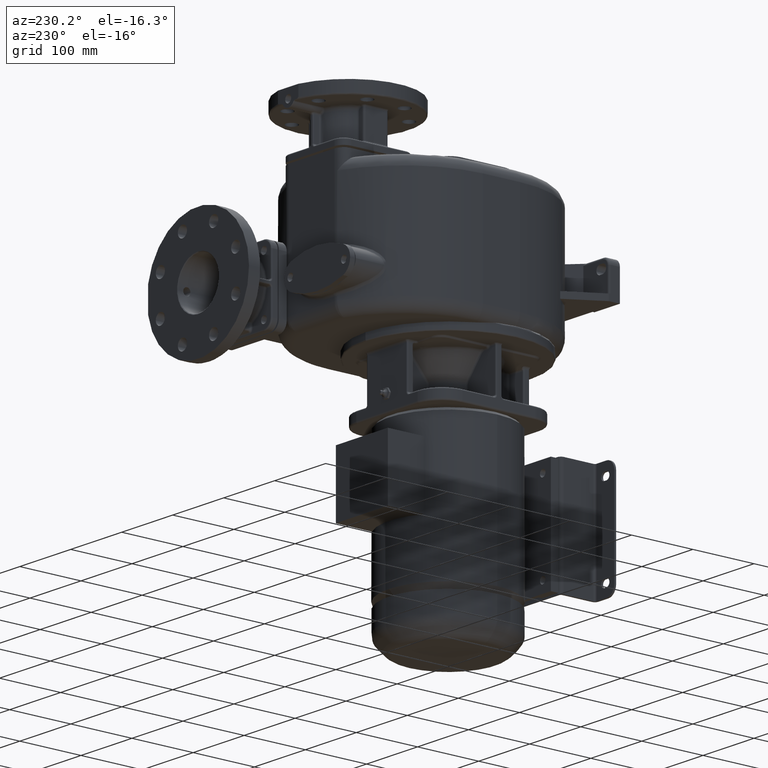
[diagram: clean part render]
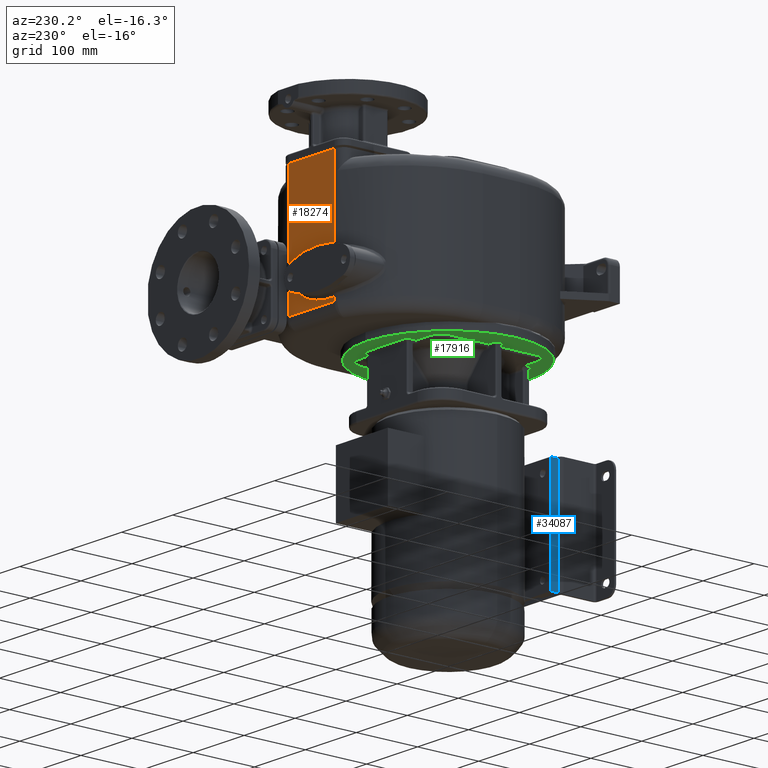
[diagram: same view with three faces highlighted in distinct colors, each labeled with its STEP entity id]
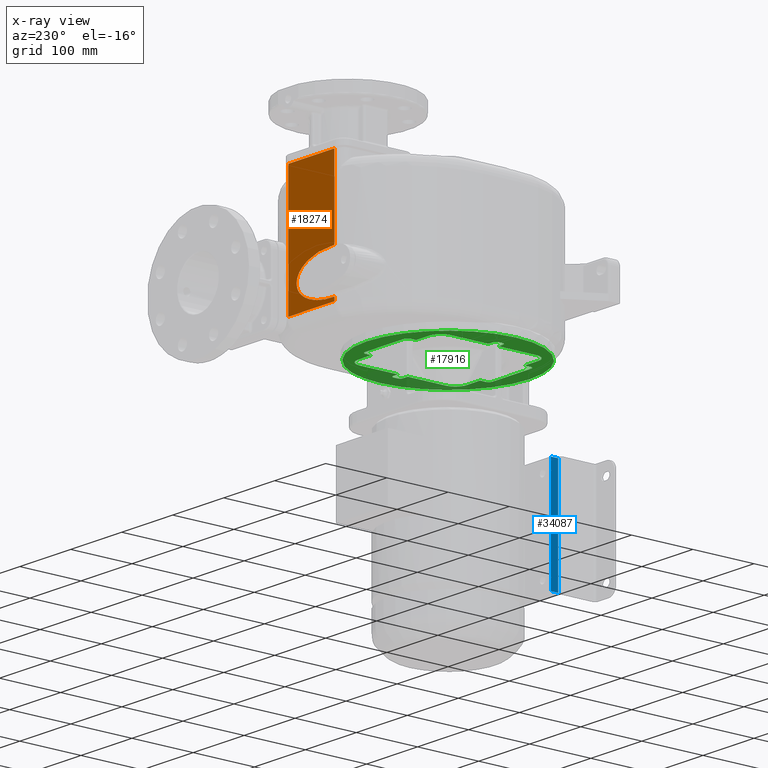
[diagram: x-ray of the same camera — body ghosted, the three highlighted faces saturated]
A machine part, auxiliary view with three faces highlighted in distinct colors.
The next image is the same camera in x-ray (body ghosted, the three faces saturated) — at least one of them is partly hidden behind the body in this view.
Their STEP definitions:

[orange] entity #18274 — the highlighted planar face has unit normal (0, 1, 0).
#1162=CARTESIAN_POINT('',(-2.899999997928E1,2.099999548078E2,1.235864245095E2));
#1199=DIRECTION('',(-5.701649693297E-7,1.924497376476E-6,-9.999999999980E-1));
#1200=VECTOR('',#1199,6.085368052133E0);
#1201=CARTESIAN_POINT('',(-2.899999997928E1,2.099999548078E2,1.235864245095E2));
#1202=LINE('',#1201,#1200);
#1317=CARTESIAN_POINT('',(-2.9E1,2.1E2,1.914135754891E2));
#1318=CARTESIAN_POINT('',(-2.812929470603E1,2.099999992350E2,1.914437228009E2));
#1319=CARTESIAN_POINT('',(-2.638620729837E1,2.100000003551E2,1.914882764908E2));
#1320=CARTESIAN_POINT('',(-2.376323258551E1,2.099999999049E2,1.915077212898E2));
#1321=CARTESIAN_POINT('',(-2.114183414498E1,2.100000000255E2,1.914797045793E2));
#1322=CARTESIAN_POINT('',(-1.852832100969E1,2.099999999932E2,1.914044005141E2));
#1323=CARTESIAN_POINT('',(-1.592992284578E1,2.100000000018E2,1.912822232711E2));
#1324=CARTESIAN_POINT('',(-1.335349379176E1,2.099999999995E2,1.911141095008E2));
#1325=CARTESIAN_POINT('',(-1.080661808292E1,2.100000000001E2,1.909010622154E2));
#1326=CARTESIAN_POINT('',(-8.297074087882E0,2.1E2,1.906446709918E2));
#1327=CARTESIAN_POINT('',(-5.832057348922E0,2.1E2,1.903468559465E2));
#1328=CARTESIAN_POINT('',(-3.416706500719E0,2.1E2,1.900094084918E2));
#1329=CARTESIAN_POINT('',(-1.056341843420E0,2.1E2,1.896346797863E2));
#1330=CARTESIAN_POINT('',(1.244578948155E0,2.1E2,1.892248594034E2));
#1331=CARTESIAN_POINT('',(3.481872242075E0,2.1E2,1.887824772320E2));
#1332=CARTESIAN_POINT('',(5.651984115659E0,2.1E2,1.883101430858E2));
#1333=CARTESIAN_POINT('',(7.752342890150E0,2.1E2,1.878103273943E2));
#1334=CARTESIAN_POINT('',(9.780601744405E0,2.1E2,1.872857903484E2));
#1335=CARTESIAN_POINT('',(1.173541440879E1,2.1E2,1.867389369718E2));
#1336=CARTESIAN_POINT('',(1.361564105505E1,2.1E2,1.861724593239E2));
#1337=CARTESIAN_POINT('',(1.542101035729E1,2.1E2,1.855886307808E2));
#1338=CARTESIAN_POINT('',(1.715148696562E1,2.1E2,1.849899274822E2));
#1339=CARTESIAN_POINT('',(1.880765080242E1,2.1E2,1.843784281618E2));
#1340=CARTESIAN_POINT('',(2.039033280152E1,2.1E2,1.837563342891E2));
#1341=CARTESIAN_POINT('',(2.190077092490E1,2.1E2,1.831254777323E2));
#1342=CARTESIAN_POINT('',(2.334044405304E1,2.1E2,1.824877590118E2));
#1343=CARTESIAN_POINT('',(2.471107004050E1,2.1E2,1.818447304756E2));
#1344=CARTESIAN_POINT('',(2.601458449934E1,2.1E2,1.811979899172E2));
#1345=CARTESIAN_POINT('',(2.725301629504E1,2.1E2,1.805487978666E2));
#1346=CARTESIAN_POINT('',(2.842859812088E1,2.1E2,1.798984595733E2));
#1347=CARTESIAN_POINT('',(2.954352588055E1,2.1E2,1.792479664219E2));
#1348=CARTESIAN_POINT('',(3.060018627672E1,2.1E2,1.785983087580E2));
#1349=CARTESIAN_POINT('',(3.160085499816E1,2.1E2,1.779503041347E2));
#1350=CARTESIAN_POINT('',(3.254785159546E1,2.1E2,1.773046037741E2));
#1351=CARTESIAN_POINT('',(3.344360045197E1,2.1E2,1.766618608852E2));
#1352=CARTESIAN_POINT('',(3.429027541890E1,2.1E2,1.760225033572E2));
#1353=CARTESIAN_POINT('',(3.509022037323E1,2.1E2,1.753868377330E2));
#1354=CARTESIAN_POINT('',(3.584567867138E1,2.1E2,1.747552127048E2));
#1355=CARTESIAN_POINT('',(3.655860234924E1,2.1E2,1.741278471453E2));
#1356=CARTESIAN_POINT('',(3.723109728265E1,2.1E2,1.735047993672E2));
#1357=CARTESIAN_POINT('',(3.786512608636E1,2.1E2,1.728862057838E2));
#1358=CARTESIAN_POINT('',(3.846237359274E1,2.1E2,1.722721687608E2));
#1359=CARTESIAN_POINT('',(3.902462495914E1,2.1E2,1.716626128192E2));
#1360=CARTESIAN_POINT('',(3.955353194940E1,2.1E2,1.710575323652E2));
#1361=CARTESIAN_POINT('',(4.005054156562E1,2.1E2,1.704569185810E2));
#1362=CARTESIAN_POINT('',(4.051715682408E1,2.1E2,1.698605912210E2));
#1363=CARTESIAN_POINT('',(4.095471357948E1,2.1E2,1.692684741851E2));
#1364=CARTESIAN_POINT('',(4.136442097044E1,2.1E2,1.686804887859E2));
#1365=CARTESIAN_POINT('',(4.174749828790E1,2.1E2,1.680964122865E2));
#1366=CARTESIAN_POINT('',(4.210501020818E1,2.1E2,1.675161265690E2));
#1367=CARTESIAN_POINT('',(4.243797145710E1,2.1E2,1.669394740309E2));
#1368=CARTESIAN_POINT('',(4.274733827715E1,2.1E2,1.663662144851E2));
#1369=CARTESIAN_POINT('',(4.303394294487E1,2.1E2,1.657962224547E2));
#1370=CARTESIAN_POINT('',(4.329860048050E1,2.1E2,1.652292998543E2));
#1371=CARTESIAN_POINT('',(4.354203954188E1,2.1E2,1.646651923297E2));
#1372=CARTESIAN_POINT('',(4.376495873148E1,2.1E2,1.641036683899E2));
#1373=CARTESIAN_POINT('',(4.396799279314E1,2.1E2,1.635444174992E2));
#1374=CARTESIAN_POINT('',(4.415159391111E1,2.1E2,1.629873728729E2));
#1375=CARTESIAN_POINT('',(4.431624508424E1,2.1E2,1.624325031765E2));
#1376=CARTESIAN_POINT('',(4.446237855760E1,2.1E2,1.618796633186E2));
#1377=CARTESIAN_POINT('',(4.459042179765E1,2.099999999998E2,1.613283498830E2));
#1378=CARTESIAN_POINT('',(4.470080684697E1,2.100000000006E2,1.607780794461E2));
#1379=CARTESIAN_POINT('',(4.479382368447E1,2.099999999978E2,1.602283848653E2));
#1380=CARTESIAN_POINT('',(4.486952734794E1,2.100000000081E2,1.596796107372E2));
#1381=CARTESIAN_POINT('',(4.492810415157E1,2.099999999697E2,1.591320566907E2));
#1382=CARTESIAN_POINT('',(4.496973206241E1,2.100000001130E2,1.585860289164E2));
#1383=CARTESIAN_POINT('',(4.499451579930E1,2.099999995782E2,1.580417620502E2));
#1384=CARTESIAN_POINT('',(4.499999843316E1,2.100000009089E2,1.576803616663E2));
#1385=CARTESIAN_POINT('',(4.5E1,2.1E2,1.575E2));
#1387=CARTESIAN_POINT('',(4.5E1,2.1E2,1.575E2));
#1388=CARTESIAN_POINT('',(4.499992508103E1,2.100000383524E2,1.573172921996E2));
#1389=CARTESIAN_POINT('',(4.499387709423E1,2.099999822006E2,1.569518861931E2));
#1390=CARTESIAN_POINT('',(4.496843221428E1,2.100000047693E2,1.564038782661E2));
#1391=CARTESIAN_POINT('',(4.492614154155E1,2.099999987221E2,1.558557523098E2));
#1392=CARTESIAN_POINT('',(4.486712435648E1,2.100000003424E2,1.553073787860E2));
#1393=CARTESIAN_POINT('',(4.479122304995E1,2.099999999082E2,1.547586251314E2));
#1394=CARTESIAN_POINT('',(4.469823754406E1,2.100000000246E2,1.542093943127E2));
#1395=CARTESIAN_POINT('',(4.458786115940E1,2.099999999934E2,1.536596129561E2));
#1396=CARTESIAN_POINT('',(4.445969771131E1,2.100000000018E2,1.531092939907E2));
#1397=CARTESIAN_POINT('',(4.431358986859E1,2.099999999995E2,1.525581305216E2));
#1398=CARTESIAN_POINT('',(4.414911515722E1,2.100000000001E2,1.520052231611E2));
#1399=CARTESIAN_POINT('',(4.396574358770E1,2.1E2,1.514498579952E2));
#1400=CARTESIAN_POINT('',(4.376277635230E1,2.1E2,1.508912725533E2));
#1401=CARTESIAN_POINT('',(4.353959981475E1,2.1E2,1.503293404044E2));
#1402=CARTESIAN_POINT('',(4.329582435294E1,2.1E2,1.497646135758E2));
#1403=CARTESIAN_POINT('',(4.303099714465E1,2.1E2,1.491975932590E2));
#1404=CARTESIAN_POINT('',(4.274478453741E1,2.1E2,1.486287937128E2));
#1405=CARTESIAN_POINT('',(4.243611312217E1,2.1E2,1.480571618325E2));
#1406=CARTESIAN_POINT('',(4.210373548272E1,2.1E2,1.474817439734E2));
#1407=CARTESIAN_POINT('',(4.174628112881E1,2.1E2,1.469017066741E2));
#1408=CARTESIAN_POINT('',(4.136295008218E1,2.1E2,1.463173599896E2));
#1409=CARTESIAN_POINT('',(4.095307014884E1,2.1E2,1.457292117809E2));
#1410=CARTESIAN_POINT('',(4.051582770311E1,2.1E2,1.451375951071E2));
#1411=CARTESIAN_POINT('',(4.004954131872E1,2.1E2,1.445417798838E2));
#1412=CARTESIAN_POINT('',(3.955253904576E1,2.1E2,1.439412739717E2));
#1413=CARTESIAN_POINT('',(3.902341912803E1,2.1E2,1.433360488596E2));
#1414=CARTESIAN_POINT('',(3.846090608190E1,2.1E2,1.427262741020E2));
#1415=CARTESIAN_POINT('',(3.786325851927E1,2.1E2,1.421118915248E2));
#1416=CARTESIAN_POINT('',(3.722866641295E1,2.1E2,1.414928700276E2));
#1417=CARTESIAN_POINT('',(3.655546329321E1,2.1E2,1.408693389983E2));
#1418=CARTESIAN_POINT('',(3.584185767461E1,2.1E2,1.402414859101E2));
#1419=CARTESIAN_POINT('',(3.508560285328E1,2.1E2,1.396093600378E2));
#1420=CARTESIAN_POINT('',(3.428462017367E1,2.1E2,1.389731451499E2));
#1421=CARTESIAN_POINT('',(3.343683161386E1,2.1E2,1.383331413766E2));
#1422=CARTESIAN_POINT('',(3.253986769206E1,2.1E2,1.376897768289E2));
#1423=CARTESIAN_POINT('',(3.159156259621E1,2.1E2,1.370435441856E2));
#1424=CARTESIAN_POINT('',(3.058970818316E1,2.1E2,1.363950522476E2));
#1425=CARTESIAN_POINT('',(2.953182520990E1,2.1E2,1.357450267767E2));
#1426=CARTESIAN_POINT('',(2.841568933712E1,2.1E2,1.350942068470E2));
#1427=CARTESIAN_POINT('',(2.723894149036E1,2.1E2,1.344436040841E2));
#1428=CARTESIAN_POINT('',(2.599935986580E1,2.1E2,1.337942591240E2));
#1429=CARTESIAN_POINT('',(2.469479501983E1,2.1E2,1.331473976331E2));
#1430=CARTESIAN_POINT('',(2.332314856009E1,2.1E2,1.325043720863E2));
#1431=CARTESIAN_POINT('',(2.188253935640E1,2.1E2,1.318666633480E2));
#1432=CARTESIAN_POINT('',(2.037122834618E1,2.1E2,1.312359406024E2));
#1433=CARTESIAN_POINT('',(1.878776983726E1,2.1E2,1.306139835600E2));
#1434=CARTESIAN_POINT('',(1.713094948972E1,2.1E2,1.300027484342E2));
#1435=CARTESIAN_POINT('',(1.539996232375E1,2.1E2,1.294043160168E2));
#1436=CARTESIAN_POINT('',(1.359433513874E1,2.1E2,1.288209102783E2));
#1437=CARTESIAN_POINT('',(1.171409110889E1,2.1E2,1.282548593022E2));
#1438=CARTESIAN_POINT('',(9.759618245088E0,2.1E2,1.277085929076E2));
#1439=CARTESIAN_POINT('',(7.731917183342E0,2.1E2,1.271845904458E2));
#1440=CARTESIAN_POINT('',(5.632494235124E0,2.1E2,1.266854546424E2));
#1441=CARTESIAN_POINT('',(3.463424952192E0,2.1E2,1.262136838556E2));
#1442=CARTESIAN_POINT('',(1.227491667789E0,2.1E2,1.257719626149E2));
#1443=CARTESIAN_POINT('',(-1.072122797613E0,2.1E2,1.253626702229E2));
#1444=CARTESIAN_POINT('',(-3.431072763349E0,2.1E2,1.249884585841E2));
#1445=CARTESIAN_POINT('',(-5.844983911188E0,2.1E2,1.246514851240E2));
#1446=CARTESIAN_POINT('',(-8.308541514578E0,2.1E2,1.243540523956E2));
#1447=CARTESIAN_POINT('',(-1.081660475374E1,2.100000000001E2,1.240980288888E2));
#1448=CARTESIAN_POINT('',(-1.336214714660E1,2.099999999995E2,1.238852579158E2));
#1449=CARTESIAN_POINT('',(-1.593722119364E1,2.100000000019E2,1.237173749250E2));
#1450=CARTESIAN_POINT('',(-1.853419327794E1,2.099999999928E2,1.235953883322E2));
#1451=CARTESIAN_POINT('',(-2.114624212656E1,2.100000000269E2,1.235202218199E2));
#1452=CARTESIAN_POINT('',(-2.376616262877E1,2.099999998996E2,1.234922792701E2));
#1453=CARTESIAN_POINT('',(-2.638766096014E1,2.100000003746E2,1.235117540339E2));
#1454=CARTESIAN_POINT('',(-2.812977766771E1,2.099999991928E2,1.235562936212E2));
#1455=CARTESIAN_POINT('',(-2.899999999999E1,2.1E2,1.235864245109E2));
#1457=CARTESIAN_POINT('',(-2.899999729325E1,2.1E2,1.175E2));
#1458=CARTESIAN_POINT('',(-1.900000094441E1,2.1E2,1.175E2));
#1459=CARTESIAN_POINT('',(9.999939490721E-1,2.1E2,1.175E2));
#1460=CARTESIAN_POINT('',(3.100000605218E1,2.1E2,1.175E2));
#1461=CARTESIAN_POINT('',(5.100000094522E1,2.1E2,1.175E2));
#1462=CARTESIAN_POINT('',(6.099999729373E1,2.1E2,1.175E2));
#1464=DIRECTION('',(1.724405015914E-8,-1.673766603039E-7,-1.E0));
#1465=VECTOR('',#1464,1.999989436274E2);
#1466=CARTESIAN_POINT('',(6.1E1,2.1E2,3.175E2));
#1467=LINE('',#1466,#1465);
#1525=CARTESIAN_POINT('',(-2.899999998975E1,2.099999547292E2,1.914135754902E2));
#1527=DIRECTION('',(8.129360111275E-11,-3.590457443954E-7,-9.999999999999E-1));
#1528=VECTOR('',#1527,1.260864245098E2);
#1529=CARTESIAN_POINT('',(-2.9E1,2.1E2,3.175E2));
#1530=LINE('',#1529,#1528);
#1544=DIRECTION('',(-1.E0,0.E0,0.E0));
#1545=VECTOR('',#1544,9.E1);
#1546=CARTESIAN_POINT('',(6.1E1,2.1E2,3.175E2));
#1547=LINE('',#1546,#1545);
#15723=CARTESIAN_POINT('',(6.1E1,2.1E2,3.175E2));
#15724=CARTESIAN_POINT('',(-2.9E1,2.1E2,3.175E2));
#15725=VERTEX_POINT('',#15723);
#15726=VERTEX_POINT('',#15724);
#15809=VERTEX_POINT('',#1457);
#15810=VERTEX_POINT('',#1462);
#16002=VERTEX_POINT('',#1162);
#16010=VERTEX_POINT('',#1525);
#16012=VERTEX_POINT('',#1385);
#18255=CARTESIAN_POINT('',(6.1E1,2.1E2,3.175E2));
#18256=DIRECTION('',(0.E0,1.E0,0.E0));
#18257=DIRECTION('',(-1.E0,0.E0,0.E0));
#18258=AXIS2_PLACEMENT_3D('',#18255,#18256,#18257);
#18259=PLANE('',#18258);
#18261=ORIENTED_EDGE('',*,*,#18260,.T.);
#18263=ORIENTED_EDGE('',*,*,#18262,.T.);
#18264=ORIENTED_EDGE('',*,*,#18184,.T.);
#18265=ORIENTED_EDGE('',*,*,#18246,.T.);
#18267=ORIENTED_EDGE('',*,*,#18266,.F.);
#18269=ORIENTED_EDGE('',*,*,#18268,.T.);
#18271=ORIENTED_EDGE('',*,*,#18270,.T.);
#18272=EDGE_LOOP('',(#18261,#18263,#18264,#18265,#18267,#18269,#18271));
#18273=FACE_OUTER_BOUND('',#18272,.F.);
#18274=ADVANCED_FACE('',(#18273),#18259,.T.);
#1386=B_SPLINE_CURVE_WITH_KNOTS('',3,(#1317,#1318,#1319,#1320,#1321,#1322,#1323,
#1324,#1325,#1326,#1327,#1328,#1329,#1330,#1331,#1332,#1333,#1334,#1335,#1336,
#1337,#1338,#1339,#1340,#1341,#1342,#1343,#1344,#1345,#1346,#1347,#1348,#1349,
#1350,#1351,#1352,#1353,#1354,#1355,#1356,#1357,#1358,#1359,#1360,#1361,#1362,
#1363,#1364,#1365,#1366,#1367,#1368,#1369,#1370,#1371,#1372,#1373,#1374,#1375,
#1376,#1377,#1378,#1379,#1380,#1381,#1382,#1383,#1384,#1385),.UNSPECIFIED.,.F.,
.F.,(4,1,1,1,1,1,1,1,1,1,1,1,1,1,1,1,1,1,1,1,1,1,1,1,1,1,1,1,1,1,1,1,1,1,1,1,1,
1,1,1,1,1,1,1,1,1,1,1,1,1,1,1,1,1,1,1,1,1,1,1,1,1,1,1,1,1,4),(0.E0,
1.515151515152E-2,3.030303030303E-2,4.545454545455E-2,6.060606060606E-2,
7.575757575758E-2,9.090909090909E-2,1.060606060606E-1,1.212121212121E-1,
1.363636363636E-1,1.515151515152E-1,1.666666666667E-1,1.818181818182E-1,
1.969696969697E-1,2.121212121212E-1,2.272727272727E-1,2.424242424242E-1,
2.575757575758E-1,2.727272727273E-1,2.878787878788E-1,3.030303030303E-1,
3.181818181818E-1,3.333333333333E-1,3.484848484848E-1,3.636363636364E-1,
3.787878787879E-1,3.939393939394E-1,4.090909090909E-1,4.242424242424E-1,
4.393939393939E-1,4.545454545455E-1,4.696969696970E-1,4.848484848485E-1,5.E-1,
5.151515151515E-1,5.303030303030E-1,5.454545454545E-1,5.606060606061E-1,
5.757575757576E-1,5.909090909091E-1,6.060606060606E-1,6.212121212121E-1,
6.363636363636E-1,6.515151515152E-1,6.666666666667E-1,6.818181818182E-1,
6.969696969697E-1,7.121212121212E-1,7.272727272727E-1,7.424242424242E-1,
7.575757575758E-1,7.727272727273E-1,7.878787878788E-1,8.030303030303E-1,
8.181818181818E-1,8.333333333333E-1,8.484848484848E-1,8.636363636364E-1,
8.787878787879E-1,8.939393939394E-1,9.090909090909E-1,9.242424242424E-1,
9.393939393939E-1,9.545454545455E-1,9.696969696970E-1,9.848484848485E-1,1.E0),
.UNSPECIFIED.);
#1456=B_SPLINE_CURVE_WITH_KNOTS('',3,(#1387,#1388,#1389,#1390,#1391,#1392,#1393,
#1394,#1395,#1396,#1397,#1398,#1399,#1400,#1401,#1402,#1403,#1404,#1405,#1406,
#1407,#1408,#1409,#1410,#1411,#1412,#1413,#1414,#1415,#1416,#1417,#1418,#1419,
#1420,#1421,#1422,#1423,#1424,#1425,#1426,#1427,#1428,#1429,#1430,#1431,#1432,
#1433,#1434,#1435,#1436,#1437,#1438,#1439,#1440,#1441,#1442,#1443,#1444,#1445,
#1446,#1447,#1448,#1449,#1450,#1451,#1452,#1453,#1454,#1455),.UNSPECIFIED.,.F.,
.F.,(4,1,1,1,1,1,1,1,1,1,1,1,1,1,1,1,1,1,1,1,1,1,1,1,1,1,1,1,1,1,1,1,1,1,1,1,1,
1,1,1,1,1,1,1,1,1,1,1,1,1,1,1,1,1,1,1,1,1,1,1,1,1,1,1,1,1,4),(0.E0,
1.515151515152E-2,3.030303030303E-2,4.545454545455E-2,6.060606060606E-2,
7.575757575758E-2,9.090909090909E-2,1.060606060606E-1,1.212121212121E-1,
1.363636363636E-1,1.515151515152E-1,1.666666666667E-1,1.818181818182E-1,
1.969696969697E-1,2.121212121212E-1,2.272727272727E-1,2.424242424242E-1,
2.575757575758E-1,2.727272727273E-1,2.878787878788E-1,3.030303030303E-1,
3.181818181818E-1,3.333333333333E-1,3.484848484848E-1,3.636363636364E-1,
3.787878787879E-1,3.939393939394E-1,4.090909090909E-1,4.242424242424E-1,
4.393939393939E-1,4.545454545455E-1,4.696969696970E-1,4.848484848485E-1,5.E-1,
5.151515151515E-1,5.303030303030E-1,5.454545454545E-1,5.606060606061E-1,
5.757575757576E-1,5.909090909091E-1,6.060606060606E-1,6.212121212121E-1,
6.363636363636E-1,6.515151515152E-1,6.666666666667E-1,6.818181818182E-1,
6.969696969697E-1,7.121212121212E-1,7.272727272727E-1,7.424242424242E-1,
7.575757575758E-1,7.727272727273E-1,7.878787878788E-1,8.030303030303E-1,
8.181818181818E-1,8.333333333333E-1,8.484848484848E-1,8.636363636364E-1,
8.787878787879E-1,8.939393939394E-1,9.090909090909E-1,9.242424242424E-1,
9.393939393939E-1,9.545454545455E-1,9.696969696970E-1,9.848484848485E-1,1.E0),
.UNSPECIFIED.);
#1463=B_SPLINE_CURVE_WITH_KNOTS('',3,(#1457,#1458,#1459,#1460,#1461,#1462),
.UNSPECIFIED.,.F.,.F.,(4,1,1,4),(0.E0,3.333333333333E-1,6.666666666667E-1,1.E0),
.UNSPECIFIED.);
#18184=EDGE_CURVE('',#16002,#15809,#1202,.T.);
#18246=EDGE_CURVE('',#15809,#15810,#1463,.T.);
#18260=EDGE_CURVE('',#16010,#16012,#1386,.T.);
#18262=EDGE_CURVE('',#16012,#16002,#1456,.T.);
#18266=EDGE_CURVE('',#15725,#15810,#1467,.T.);
#18268=EDGE_CURVE('',#15725,#15726,#1547,.T.);
#18270=EDGE_CURVE('',#15726,#16010,#1530,.T.);

[blue] entity #34087 — the highlighted planar face has unit normal (-1, 0, 0).
#13309=DIRECTION('',(0.E0,1.E0,0.E0));
#13310=VECTOR('',#13309,1.2E1);
#13311=CARTESIAN_POINT('',(-9.6E1,-1.E2,-4.5E1));
#13312=LINE('',#13311,#13310);
#13329=DIRECTION('',(0.E0,0.E0,1.E0));
#13330=VECTOR('',#13329,1.76E2);
#13331=CARTESIAN_POINT('',(-9.6E1,-1.E2,-2.21E2));
#13332=LINE('',#13331,#13330);
#14097=DIRECTION('',(0.E0,0.E0,1.E0));
#14098=VECTOR('',#14097,1.76E2);
#14099=CARTESIAN_POINT('',(-9.6E1,-8.8E1,-2.21E2));
#14100=LINE('',#14099,#14098);
#14125=DIRECTION('',(0.E0,1.E0,0.E0));
#14126=VECTOR('',#14125,1.2E1);
#14127=CARTESIAN_POINT('',(-9.6E1,-1.E2,-2.21E2));
#14128=LINE('',#14127,#14126);
#15397=CARTESIAN_POINT('',(-9.6E1,-1.E2,-2.21E2));
#15398=CARTESIAN_POINT('',(-9.6E1,-1.E2,-4.5E1));
#15399=VERTEX_POINT('',#15397);
#15400=VERTEX_POINT('',#15398);
#15405=CARTESIAN_POINT('',(-9.6E1,-8.8E1,-2.21E2));
#15406=CARTESIAN_POINT('',(-9.6E1,-8.8E1,-4.5E1));
#15407=VERTEX_POINT('',#15405);
#15408=VERTEX_POINT('',#15406);
#34076=CARTESIAN_POINT('',(-9.6E1,-1.E2,-2.21E2));
#34077=DIRECTION('',(-1.E0,0.E0,0.E0));
#34078=DIRECTION('',(0.E0,0.E0,1.E0));
#34079=AXIS2_PLACEMENT_3D('',#34076,#34077,#34078);
#34080=PLANE('',#34079);
#34081=ORIENTED_EDGE('',*,*,#32948,.F.);
#34082=ORIENTED_EDGE('',*,*,#32902,.T.);
#34083=ORIENTED_EDGE('',*,*,#34059,.T.);
#34084=ORIENTED_EDGE('',*,*,#32930,.F.);
#34085=EDGE_LOOP('',(#34081,#34082,#34083,#34084));
#34086=FACE_OUTER_BOUND('',#34085,.F.);
#34087=ADVANCED_FACE('',(#34086),#34080,.T.);
#32902=EDGE_CURVE('',#15399,#15407,#14128,.T.);
#32930=EDGE_CURVE('',#15400,#15408,#13312,.T.);
#32948=EDGE_CURVE('',#15399,#15400,#13332,.T.);
#34059=EDGE_CURVE('',#15407,#15408,#14100,.T.);

[green] entity #17916 — the highlighted planar face has unit normal (0, 0, -1).
#548=CARTESIAN_POINT('',(0.E0,0.E0,8.6E1));
#549=DIRECTION('',(0.E0,0.E0,1.E0));
#550=DIRECTION('',(0.E0,-1.E0,0.E0));
#551=AXIS2_PLACEMENT_3D('',#548,#549,#550);
#553=CARTESIAN_POINT('',(0.E0,0.E0,8.6E1));
#554=DIRECTION('',(0.E0,0.E0,1.E0));
#555=DIRECTION('',(0.E0,1.E0,0.E0));
#556=AXIS2_PLACEMENT_3D('',#553,#554,#555);
#558=DIRECTION('',(-1.E0,3.687291234126E-12,0.E0));
#559=VECTOR('',#558,9.127016653686E0);
#560=CARTESIAN_POINT('',(-8.887298334632E1,-8.E0,8.6E1));
#561=LINE('',#560,#559);
#562=DIRECTION('',(0.E0,1.E0,0.E0));
#563=VECTOR('',#562,5.999999999744E0);
#564=CARTESIAN_POINT('',(-1.03E2,-2.999999999871E0,8.6E1));
#565=LINE('',#564,#563);
#566=DIRECTION('',(1.E0,3.695562848887E-12,0.E0));
#567=VECTOR('',#566,9.127016653686E0);
#568=CARTESIAN_POINT('',(-9.800000000001E1,7.999999999966E0,8.6E1));
#569=LINE('',#568,#567);
#570=DIRECTION('',(1.810737939518E-12,1.E0,3.169868668626E-11));
#571=VECTOR('',#570,6.2E1);
#572=CARTESIAN_POINT('',(-8.887298334632E1,8.E0,8.6E1));
#573=LINE('',#572,#571);
#574=CARTESIAN_POINT('',(-8.887298334621E1,7.E1,8.600000000197E1));
#575=CARTESIAN_POINT('',(-8.887298294806E1,7.018155987769E1,8.600000021340E1));
#576=CARTESIAN_POINT('',(-8.886769114545E1,7.054506315371E1,8.599999990096E1));
#577=CARTESIAN_POINT('',(-8.884379744672E1,7.109184056524E1,8.600000002654E1));
#578=CARTESIAN_POINT('',(-8.880390290899E1,7.163902467341E1,8.599999999289E1));
#579=CARTESIAN_POINT('',(-8.874799781269E1,7.218590457280E1,8.600000000191E1));
#580=CARTESIAN_POINT('',(-8.867611038602E1,7.273170283086E1,8.599999999949E1));
#581=CARTESIAN_POINT('',(-8.858831699757E1,7.327565576949E1,8.600000000014E1));
#582=CARTESIAN_POINT('',(-8.848471902692E1,7.381704834141E1,8.599999999996E1));
#583=CARTESIAN_POINT('',(-8.836544016384E1,7.435519879041E1,8.600000000001E1));
#584=CARTESIAN_POINT('',(-8.823063188260E1,7.488943900587E1,8.6E1));
#585=CARTESIAN_POINT('',(-8.808053745887E1,7.541883697594E1,8.6E1));
#586=CARTESIAN_POINT('',(-8.791549631757E1,7.594239504151E1,8.6E1));
#587=CARTESIAN_POINT('',(-8.773584775741E1,7.645938635359E1,8.6E1));
#588=CARTESIAN_POINT('',(-8.754158149385E1,7.697008554026E1,8.6E1));
#589=CARTESIAN_POINT('',(-8.733260686646E1,7.747460387865E1,8.6E1));
#590=CARTESIAN_POINT('',(-8.710885478696E1,7.797311047727E1,8.6E1));
#591=CARTESIAN_POINT('',(-8.687030840931E1,7.846574927434E1,8.6E1));
#592=CARTESIAN_POINT('',(-8.661677845729E1,7.895272233116E1,8.6E1));
#593=CARTESIAN_POINT('',(-8.634854676209E1,7.943325726868E1,8.6E1));
#594=CARTESIAN_POINT('',(-8.606608913403E1,7.990639124924E1,8.6E1));
#595=CARTESIAN_POINT('',(-8.576989968645E1,8.037128690352E1,8.6E1));
#596=CARTESIAN_POINT('',(-8.546031463788E1,8.082741414276E1,8.6E1));
#597=CARTESIAN_POINT('',(-8.513767430919E1,8.127427281028E1,8.6E1));
#598=CARTESIAN_POINT('',(-8.480244255886E1,8.171122265765E1,8.6E1));
#599=CARTESIAN_POINT('',(-8.445526316823E1,8.213746297811E1,8.6E1));
#600=CARTESIAN_POINT('',(-8.409691475800E1,8.255217650748E1,8.6E1));
#601=CARTESIAN_POINT('',(-8.372757562847E1,8.295532127685E1,8.6E1));
#602=CARTESIAN_POINT('',(-8.334709723911E1,8.334709784181E1,8.6E1));
#603=CARTESIAN_POINT('',(-8.295532085453E1,8.372757598032E1,8.6E1));
#604=CARTESIAN_POINT('',(-8.255217632622E1,8.409691492505E1,8.6E1));
#605=CARTESIAN_POINT('',(-8.213746210721E1,8.445526393768E1,8.6E1));
#606=CARTESIAN_POINT('',(-8.171122117512E1,8.480244374338E1,8.6E1));
#607=CARTESIAN_POINT('',(-8.127427111157E1,8.513767555173E1,8.6E1));
#608=CARTESIAN_POINT('',(-8.082741268214E1,8.546031564384E1,8.6E1));
#609=CARTESIAN_POINT('',(-8.037128541948E1,8.576990064986E1,8.6E1));
#610=CARTESIAN_POINT('',(-7.990638973863E1,8.606609006938E1,8.6E1));
#611=CARTESIAN_POINT('',(-7.943325610875E1,8.634854745801E1,8.6E1));
#612=CARTESIAN_POINT('',(-7.895272192632E1,8.661677870269E1,8.6E1));
#613=CARTESIAN_POINT('',(-7.846574928295E1,8.687030839998E1,8.6E1));
#614=CARTESIAN_POINT('',(-7.797311060098E1,8.710885465664E1,8.6E1));
#615=CARTESIAN_POINT('',(-7.747460404889E1,8.733260671521E1,8.6E1));
#616=CARTESIAN_POINT('',(-7.697008571495E1,8.754158149994E1,8.6E1));
#617=CARTESIAN_POINT('',(-7.645938649128E1,8.773584777026E1,8.6E1));
#618=CARTESIAN_POINT('',(-7.594239547582E1,8.791549615964E1,8.6E1));
#619=CARTESIAN_POINT('',(-7.541883794602E1,8.808053713544E1,8.6E1));
#620=CARTESIAN_POINT('',(-7.488943967641E1,8.823063169489E1,8.6E1));
#621=CARTESIAN_POINT('',(-7.435519900231E1,8.836544012395E1,8.600000000001E1));
#622=CARTESIAN_POINT('',(-7.381704839329E1,8.848471902590E1,8.599999999996E1));
#623=CARTESIAN_POINT('',(-7.327565588190E1,8.858831698130E1,8.600000000014E1));
#624=CARTESIAN_POINT('',(-7.273170299137E1,8.867611035889E1,8.599999999949E1));
#625=CARTESIAN_POINT('',(-7.218590466375E1,8.874799779756E1,8.600000000190E1));
#626=CARTESIAN_POINT('',(-7.163902466934E1,8.880390290831E1,8.599999999292E1));
#627=CARTESIAN_POINT('',(-7.109184051314E1,8.884379745154E1,8.600000002644E1));
#628=CARTESIAN_POINT('',(-7.054506311588E1,8.886769114261E1,8.599999990132E1));
#629=CARTESIAN_POINT('',(-7.018155986143E1,8.887298294309E1,8.600000021262E1));
#630=CARTESIAN_POINT('',(-7.E1,8.887298334621E1,8.600000000191E1));
#632=DIRECTION('',(1.E0,5.884933566099E-12,-7.363900942017E-11));
#633=VECTOR('',#632,2.6E1);
#634=CARTESIAN_POINT('',(-7.E1,8.887298334621E1,8.600000000191E1));
#635=LINE('',#634,#633);
#636=DIRECTION('',(2.086393181989E-12,1.E0,0.E0));
#637=VECTOR('',#636,9.127016653792E0);
#638=CARTESIAN_POINT('',(-4.4E1,8.887298334636E1,8.6E1));
#639=LINE('',#638,#637);
#640=DIRECTION('',(1.E0,0.E0,0.E0));
#641=VECTOR('',#640,7.600000000001E1);
#642=CARTESIAN_POINT('',(-3.800000000001E1,1.04E2,8.6E1));
#643=LINE('',#642,#641);
#644=DIRECTION('',(2.091842716419E-12,-1.E0,0.E0));
#645=VECTOR('',#644,9.127016653793E0);
#646=CARTESIAN_POINT('',(4.399999999998E1,9.800000000015E1,8.6E1));
#647=LINE('',#646,#645);
#648=DIRECTION('',(1.E0,-5.886573280105E-12,7.558917594417E-11));
#649=VECTOR('',#648,2.6E1);
#650=CARTESIAN_POINT('',(4.4E1,8.887298334636E1,8.6E1));
#651=LINE('',#650,#649);
#652=CARTESIAN_POINT('',(7.E1,8.887298334621E1,8.600000000197E1));
#653=CARTESIAN_POINT('',(7.018155987769E1,8.887298294806E1,8.600000021340E1));
#654=CARTESIAN_POINT('',(7.054506315371E1,8.886769114545E1,8.599999990096E1));
#655=CARTESIAN_POINT('',(7.109184056524E1,8.884379744672E1,8.600000002654E1));
#656=CARTESIAN_POINT('',(7.163902467341E1,8.880390290899E1,8.599999999289E1));
#657=CARTESIAN_POINT('',(7.218590457280E1,8.874799781269E1,8.600000000191E1));
#658=CARTESIAN_POINT('',(7.273170283086E1,8.867611038602E1,8.599999999949E1));
#659=CARTESIAN_POINT('',(7.327565576949E1,8.858831699757E1,8.600000000014E1));
#660=CARTESIAN_POINT('',(7.381704834141E1,8.848471902692E1,8.599999999996E1));
#661=CARTESIAN_POINT('',(7.435519879041E1,8.836544016384E1,8.600000000001E1));
#662=CARTESIAN_POINT('',(7.488943900587E1,8.823063188260E1,8.6E1));
#663=CARTESIAN_POINT('',(7.541883697594E1,8.808053745887E1,8.6E1));
#664=CARTESIAN_POINT('',(7.594239504151E1,8.791549631757E1,8.6E1));
#665=CARTESIAN_POINT('',(7.645938635359E1,8.773584775741E1,8.6E1));
#666=CARTESIAN_POINT('',(7.697008554026E1,8.754158149385E1,8.6E1));
#667=CARTESIAN_POINT('',(7.747460387865E1,8.733260686646E1,8.6E1));
#668=CARTESIAN_POINT('',(7.797311047727E1,8.710885478696E1,8.6E1));
#669=CARTESIAN_POINT('',(7.846574927434E1,8.687030840931E1,8.6E1));
#670=CARTESIAN_POINT('',(7.895272233116E1,8.661677845729E1,8.6E1));
#671=CARTESIAN_POINT('',(7.943325726868E1,8.634854676209E1,8.6E1));
#672=CARTESIAN_POINT('',(7.990639124924E1,8.606608913403E1,8.6E1));
#673=CARTESIAN_POINT('',(8.037128690351E1,8.576989968645E1,8.6E1));
#674=CARTESIAN_POINT('',(8.082741414276E1,8.546031463788E1,8.6E1));
#675=CARTESIAN_POINT('',(8.127427281027E1,8.513767430919E1,8.6E1));
#676=CARTESIAN_POINT('',(8.171122265765E1,8.480244255886E1,8.6E1));
#677=CARTESIAN_POINT('',(8.213746297811E1,8.445526316824E1,8.6E1));
#678=CARTESIAN_POINT('',(8.255217650748E1,8.409691475800E1,8.6E1));
#679=CARTESIAN_POINT('',(8.295532127684E1,8.372757562848E1,8.6E1));
#680=CARTESIAN_POINT('',(8.334709784181E1,8.334709723911E1,8.6E1));
#681=CARTESIAN_POINT('',(8.372757598032E1,8.295532085453E1,8.6E1));
#682=CARTESIAN_POINT('',(8.409691492505E1,8.255217632622E1,8.6E1));
#683=CARTESIAN_POINT('',(8.445526393768E1,8.213746210721E1,8.6E1));
#684=CARTESIAN_POINT('',(8.480244374338E1,8.171122117512E1,8.6E1));
#685=CARTESIAN_POINT('',(8.513767555173E1,8.127427111157E1,8.6E1));
#686=CARTESIAN_POINT('',(8.546031564384E1,8.082741268214E1,8.6E1));
#687=CARTESIAN_POINT('',(8.576990064986E1,8.037128541948E1,8.6E1));
#688=CARTESIAN_POINT('',(8.606609006938E1,7.990638973863E1,8.6E1));
#689=CARTESIAN_POINT('',(8.634854745801E1,7.943325610875E1,8.6E1));
#690=CARTESIAN_POINT('',(8.661677870269E1,7.895272192633E1,8.6E1));
#691=CARTESIAN_POINT('',(8.687030839998E1,7.846574928295E1,8.6E1));
#692=CARTESIAN_POINT('',(8.710885465664E1,7.797311060098E1,8.6E1));
#693=CARTESIAN_POINT('',(8.733260671521E1,7.747460404889E1,8.6E1));
#694=CARTESIAN_POINT('',(8.754158149994E1,7.697008571495E1,8.6E1));
#695=CARTESIAN_POINT('',(8.773584777026E1,7.645938649128E1,8.6E1));
#696=CARTESIAN_POINT('',(8.791549615964E1,7.594239547582E1,8.6E1));
#697=CARTESIAN_POINT('',(8.808053713544E1,7.541883794602E1,8.6E1));
#698=CARTESIAN_POINT('',(8.823063169489E1,7.488943967641E1,8.6E1));
#699=CARTESIAN_POINT('',(8.836544012395E1,7.435519900231E1,8.600000000001E1));
#700=CARTESIAN_POINT('',(8.848471902590E1,7.381704839329E1,8.599999999996E1));
#701=CARTESIAN_POINT('',(8.858831698130E1,7.327565588190E1,8.600000000014E1));
#702=CARTESIAN_POINT('',(8.867611035889E1,7.273170299137E1,8.599999999949E1));
#703=CARTESIAN_POINT('',(8.874799779756E1,7.218590466375E1,8.600000000190E1));
#704=CARTESIAN_POINT('',(8.880390290831E1,7.163902466934E1,8.599999999292E1));
#705=CARTESIAN_POINT('',(8.884379745154E1,7.109184051314E1,8.600000002644E1));
#706=CARTESIAN_POINT('',(8.886769114261E1,7.054506311588E1,8.599999990132E1));
#707=CARTESIAN_POINT('',(8.887298294309E1,7.018155986143E1,8.600000021262E1));
#708=CARTESIAN_POINT('',(8.887298334621E1,7.E1,8.600000000191E1));
#710=DIRECTION('',(1.810050317515E-12,-1.E0,-3.088087491814E-11));
#711=VECTOR('',#710,6.2E1);
#712=CARTESIAN_POINT('',(8.887298334621E1,7.E1,8.600000000191E1));
#713=LINE('',#712,#711);
#714=DIRECTION('',(1.E0,-3.686512729207E-12,0.E0));
#715=VECTOR('',#714,9.127016653686E0);
#716=CARTESIAN_POINT('',(8.887298334632E1,8.E0,8.6E1));
#717=LINE('',#716,#715);
#718=DIRECTION('',(0.E0,-1.E0,0.E0));
#719=VECTOR('',#718,5.999999999744E0);
#720=CARTESIAN_POINT('',(1.03E2,2.999999999871E0,8.6E1));
#721=LINE('',#720,#719);
#722=DIRECTION('',(-1.E0,-3.696925232494E-12,0.E0));
#723=VECTOR('',#722,9.127016653686E0);
#724=CARTESIAN_POINT('',(9.800000000001E1,-7.999999999966E0,8.6E1));
#725=LINE('',#724,#723);
#726=DIRECTION('',(-1.810737939518E-12,-1.E0,3.169868668626E-11));
#727=VECTOR('',#726,6.2E1);
#728=CARTESIAN_POINT('',(8.887298334632E1,-8.E0,8.6E1));
#729=LINE('',#728,#727);
#730=CARTESIAN_POINT('',(8.887298334621E1,-7.E1,8.600000000197E1));
#731=CARTESIAN_POINT('',(8.887298294806E1,-7.018155987769E1,8.600000021340E1));
#732=CARTESIAN_POINT('',(8.886769114545E1,-7.054506315371E1,8.599999990096E1));
#733=CARTESIAN_POINT('',(8.884379744672E1,-7.109184056524E1,8.600000002654E1));
#734=CARTESIAN_POINT('',(8.880390290899E1,-7.163902467341E1,8.599999999289E1));
#735=CARTESIAN_POINT('',(8.874799781269E1,-7.218590457279E1,8.600000000191E1));
#736=CARTESIAN_POINT('',(8.867611038602E1,-7.273170283086E1,8.599999999949E1));
#737=CARTESIAN_POINT('',(8.858831699757E1,-7.327565576949E1,8.600000000014E1));
#738=CARTESIAN_POINT('',(8.848471902692E1,-7.381704834141E1,8.599999999996E1));
#739=CARTESIAN_POINT('',(8.836544016384E1,-7.435519879041E1,8.600000000001E1));
#740=CARTESIAN_POINT('',(8.823063188260E1,-7.488943900587E1,8.6E1));
#741=CARTESIAN_POINT('',(8.808053745887E1,-7.541883697594E1,8.6E1));
#742=CARTESIAN_POINT('',(8.791549631757E1,-7.594239504151E1,8.6E1));
#743=CARTESIAN_POINT('',(8.773584775741E1,-7.645938635359E1,8.6E1));
#744=CARTESIAN_POINT('',(8.754158149385E1,-7.697008554025E1,8.6E1));
#745=CARTESIAN_POINT('',(8.733260686646E1,-7.747460387865E1,8.6E1));
#746=CARTESIAN_POINT('',(8.710885478696E1,-7.797311047727E1,8.6E1));
#747=CARTESIAN_POINT('',(8.687030840931E1,-7.846574927433E1,8.6E1));
#748=CARTESIAN_POINT('',(8.661677845729E1,-7.895272233116E1,8.6E1));
#749=CARTESIAN_POINT('',(8.634854676209E1,-7.943325726868E1,8.6E1));
#750=CARTESIAN_POINT('',(8.606608913403E1,-7.990639124924E1,8.6E1));
#751=CARTESIAN_POINT('',(8.576989968645E1,-8.037128690351E1,8.6E1));
#752=CARTESIAN_POINT('',(8.546031463788E1,-8.082741414276E1,8.6E1));
#753=CARTESIAN_POINT('',(8.513767430919E1,-8.127427281027E1,8.6E1));
#754=CARTESIAN_POINT('',(8.480244255886E1,-8.171122265764E1,8.6E1));
#755=CARTESIAN_POINT('',(8.445526316824E1,-8.213746297810E1,8.6E1));
#756=CARTESIAN_POINT('',(8.409691475800E1,-8.255217650748E1,8.6E1));
#757=CARTESIAN_POINT('',(8.372757562848E1,-8.295532127684E1,8.6E1));
#758=CARTESIAN_POINT('',(8.334709723911E1,-8.334709784181E1,8.6E1));
#759=CARTESIAN_POINT('',(8.295532085453E1,-8.372757598032E1,8.6E1));
#760=CARTESIAN_POINT('',(8.255217632622E1,-8.409691492505E1,8.6E1));
#761=CARTESIAN_POINT('',(8.213746210721E1,-8.445526393768E1,8.6E1));
#762=CARTESIAN_POINT('',(8.171122117512E1,-8.480244374338E1,8.6E1));
#763=CARTESIAN_POINT('',(8.127427111157E1,-8.513767555173E1,8.6E1));
#764=CARTESIAN_POINT('',(8.082741268214E1,-8.546031564384E1,8.6E1));
#765=CARTESIAN_POINT('',(8.037128541948E1,-8.576990064986E1,8.6E1));
#766=CARTESIAN_POINT('',(7.990638973863E1,-8.606609006938E1,8.6E1));
#767=CARTESIAN_POINT('',(7.943325610875E1,-8.634854745801E1,8.6E1));
#768=CARTESIAN_POINT('',(7.895272192632E1,-8.661677870269E1,8.6E1));
#769=CARTESIAN_POINT('',(7.846574928295E1,-8.687030839998E1,8.6E1));
#770=CARTESIAN_POINT('',(7.797311060098E1,-8.710885465664E1,8.6E1));
#771=CARTESIAN_POINT('',(7.747460404889E1,-8.733260671521E1,8.6E1));
#772=CARTESIAN_POINT('',(7.697008571495E1,-8.754158149994E1,8.6E1));
#773=CARTESIAN_POINT('',(7.645938649128E1,-8.773584777026E1,8.6E1));
#774=CARTESIAN_POINT('',(7.594239547582E1,-8.791549615964E1,8.6E1));
#775=CARTESIAN_POINT('',(7.541883794602E1,-8.808053713544E1,8.6E1));
#776=CARTESIAN_POINT('',(7.488943967641E1,-8.823063169489E1,8.6E1));
#777=CARTESIAN_POINT('',(7.435519900231E1,-8.836544012395E1,8.600000000001E1));
#778=CARTESIAN_POINT('',(7.381704839329E1,-8.848471902590E1,8.599999999996E1));
#779=CARTESIAN_POINT('',(7.327565588190E1,-8.858831698130E1,8.600000000014E1));
#780=CARTESIAN_POINT('',(7.273170299137E1,-8.867611035889E1,8.599999999949E1));
#781=CARTESIAN_POINT('',(7.218590466375E1,-8.874799779756E1,8.600000000190E1));
#782=CARTESIAN_POINT('',(7.163902466934E1,-8.880390290831E1,8.599999999292E1));
#783=CARTESIAN_POINT('',(7.109184051314E1,-8.884379745154E1,8.600000002644E1));
#784=CARTESIAN_POINT('',(7.054506311588E1,-8.886769114261E1,8.599999990132E1));
#785=CARTESIAN_POINT('',(7.018155986143E1,-8.887298294309E1,8.600000021262E1));
#786=CARTESIAN_POINT('',(7.E1,-8.887298334621E1,8.600000000191E1));
#788=DIRECTION('',(-1.E0,-5.884933566099E-12,-7.363900942017E-11));
#789=VECTOR('',#788,2.6E1);
#790=CARTESIAN_POINT('',(7.E1,-8.887298334621E1,8.600000000191E1));
#791=LINE('',#790,#789);
#792=DIRECTION('',(-2.086393181989E-12,-1.E0,0.E0));
#793=VECTOR('',#792,9.127016653792E0);
#794=CARTESIAN_POINT('',(4.4E1,-8.887298334636E1,8.6E1));
#795=LINE('',#794,#793);
#796=DIRECTION('',(-1.E0,0.E0,0.E0));
#797=VECTOR('',#796,7.600000000001E1);
#798=CARTESIAN_POINT('',(3.800000000001E1,-1.04E2,8.6E1));
#799=LINE('',#798,#797);
#800=DIRECTION('',(-2.091842716419E-12,1.E0,0.E0));
#801=VECTOR('',#800,9.127016653793E0);
#802=CARTESIAN_POINT('',(-4.399999999998E1,-9.800000000015E1,8.6E1));
#803=LINE('',#802,#801);
#804=DIRECTION('',(-1.E0,5.885480137434E-12,7.558917594417E-11));
#805=VECTOR('',#804,2.6E1);
#806=CARTESIAN_POINT('',(-4.4E1,-8.887298334636E1,8.6E1));
#807=LINE('',#806,#805);
#808=CARTESIAN_POINT('',(-7.E1,-8.887298334621E1,8.600000000197E1));
#809=CARTESIAN_POINT('',(-7.018155987769E1,-8.887298294806E1,8.600000021340E1));
#810=CARTESIAN_POINT('',(-7.054506315371E1,-8.886769114545E1,8.599999990096E1));
#811=CARTESIAN_POINT('',(-7.109184056524E1,-8.884379744672E1,8.600000002654E1));
#812=CARTESIAN_POINT('',(-7.163902467341E1,-8.880390290899E1,8.599999999289E1));
#813=CARTESIAN_POINT('',(-7.218590457279E1,-8.874799781269E1,8.600000000191E1));
#814=CARTESIAN_POINT('',(-7.273170283086E1,-8.867611038602E1,8.599999999949E1));
#815=CARTESIAN_POINT('',(-7.327565576949E1,-8.858831699757E1,8.600000000014E1));
#816=CARTESIAN_POINT('',(-7.381704834141E1,-8.848471902692E1,8.599999999996E1));
#817=CARTESIAN_POINT('',(-7.435519879041E1,-8.836544016384E1,8.600000000001E1));
#818=CARTESIAN_POINT('',(-7.488943900587E1,-8.823063188260E1,8.6E1));
#819=CARTESIAN_POINT('',(-7.541883697594E1,-8.808053745887E1,8.6E1));
#820=CARTESIAN_POINT('',(-7.594239504151E1,-8.791549631757E1,8.6E1));
#821=CARTESIAN_POINT('',(-7.645938635359E1,-8.773584775741E1,8.6E1));
#822=CARTESIAN_POINT('',(-7.697008554025E1,-8.754158149385E1,8.6E1));
#823=CARTESIAN_POINT('',(-7.747460387865E1,-8.733260686646E1,8.6E1));
#824=CARTESIAN_POINT('',(-7.797311047727E1,-8.710885478696E1,8.6E1));
#825=CARTESIAN_POINT('',(-7.846574927433E1,-8.687030840931E1,8.6E1));
#826=CARTESIAN_POINT('',(-7.895272233116E1,-8.661677845729E1,8.6E1));
#827=CARTESIAN_POINT('',(-7.943325726868E1,-8.634854676209E1,8.6E1));
#828=CARTESIAN_POINT('',(-7.990639124924E1,-8.606608913403E1,8.6E1));
#829=CARTESIAN_POINT('',(-8.037128690351E1,-8.576989968645E1,8.6E1));
#830=CARTESIAN_POINT('',(-8.082741414276E1,-8.546031463788E1,8.6E1));
#831=CARTESIAN_POINT('',(-8.127427281027E1,-8.513767430919E1,8.6E1));
#832=CARTESIAN_POINT('',(-8.171122265765E1,-8.480244255886E1,8.6E1));
#833=CARTESIAN_POINT('',(-8.213746297811E1,-8.445526316824E1,8.6E1));
#834=CARTESIAN_POINT('',(-8.255217650748E1,-8.409691475800E1,8.6E1));
#835=CARTESIAN_POINT('',(-8.295532127684E1,-8.372757562848E1,8.6E1));
#836=CARTESIAN_POINT('',(-8.334709784181E1,-8.334709723911E1,8.6E1));
#837=CARTESIAN_POINT('',(-8.372757598032E1,-8.295532085453E1,8.6E1));
#838=CARTESIAN_POINT('',(-8.409691492505E1,-8.255217632622E1,8.6E1));
#839=CARTESIAN_POINT('',(-8.445526393768E1,-8.213746210721E1,8.6E1));
#840=CARTESIAN_POINT('',(-8.480244374338E1,-8.171122117512E1,8.6E1));
#841=CARTESIAN_POINT('',(-8.513767555173E1,-8.127427111157E1,8.6E1));
#842=CARTESIAN_POINT('',(-8.546031564384E1,-8.082741268214E1,8.6E1));
#843=CARTESIAN_POINT('',(-8.576990064986E1,-8.037128541948E1,8.6E1));
#844=CARTESIAN_POINT('',(-8.606609006938E1,-7.990638973863E1,8.6E1));
#845=CARTESIAN_POINT('',(-8.634854745801E1,-7.943325610875E1,8.6E1));
#846=CARTESIAN_POINT('',(-8.661677870269E1,-7.895272192633E1,8.6E1));
#847=CARTESIAN_POINT('',(-8.687030839998E1,-7.846574928295E1,8.6E1));
#848=CARTESIAN_POINT('',(-8.710885465664E1,-7.797311060098E1,8.6E1));
#849=CARTESIAN_POINT('',(-8.733260671521E1,-7.747460404889E1,8.6E1));
#850=CARTESIAN_POINT('',(-8.754158149994E1,-7.697008571495E1,8.6E1));
#851=CARTESIAN_POINT('',(-8.773584777026E1,-7.645938649128E1,8.6E1));
#852=CARTESIAN_POINT('',(-8.791549615964E1,-7.594239547582E1,8.6E1));
#853=CARTESIAN_POINT('',(-8.808053713544E1,-7.541883794602E1,8.6E1));
#854=CARTESIAN_POINT('',(-8.823063169489E1,-7.488943967641E1,8.6E1));
#855=CARTESIAN_POINT('',(-8.836544012395E1,-7.435519900231E1,8.600000000001E1));
#856=CARTESIAN_POINT('',(-8.848471902590E1,-7.381704839329E1,8.599999999996E1));
#857=CARTESIAN_POINT('',(-8.858831698130E1,-7.327565588190E1,8.600000000014E1));
#858=CARTESIAN_POINT('',(-8.867611035889E1,-7.273170299137E1,8.599999999949E1));
#859=CARTESIAN_POINT('',(-8.874799779756E1,-7.218590466375E1,8.600000000190E1));
#860=CARTESIAN_POINT('',(-8.880390290831E1,-7.163902466934E1,8.599999999292E1));
#861=CARTESIAN_POINT('',(-8.884379745154E1,-7.109184051314E1,8.600000002644E1));
#862=CARTESIAN_POINT('',(-8.886769114261E1,-7.054506311588E1,8.599999990132E1));
#863=CARTESIAN_POINT('',(-8.887298294309E1,-7.018155986143E1,8.600000021262E1));
#864=CARTESIAN_POINT('',(-8.887298334621E1,-7.E1,8.600000000191E1));
#866=DIRECTION('',(-1.809821110181E-12,1.E0,-3.088087491814E-11));
#867=VECTOR('',#866,6.2E1);
#868=CARTESIAN_POINT('',(-8.887298334621E1,-7.E1,8.600000000191E1));
#869=LINE('',#868,#867);
#8321=CARTESIAN_POINT('',(-9.8E1,-3.E0,8.6E1));
#8322=DIRECTION('',(0.E0,0.E0,1.E0));
#8323=DIRECTION('',(-1.E0,0.E0,0.E0));
#8324=AXIS2_PLACEMENT_3D('',#8321,#8322,#8323);
#8935=CARTESIAN_POINT('',(3.8E1,-9.8E1,8.6E1));
#8936=DIRECTION('',(0.E0,0.E0,1.E0));
#8937=DIRECTION('',(0.E0,-1.E0,0.E0));
#8938=AXIS2_PLACEMENT_3D('',#8935,#8936,#8937);
#8955=CARTESIAN_POINT('',(-3.8E1,-9.8E1,8.6E1));
#8956=DIRECTION('',(0.E0,0.E0,1.E0));
#8957=DIRECTION('',(-1.E0,0.E0,0.E0));
#8958=AXIS2_PLACEMENT_3D('',#8955,#8956,#8957);
#9319=CARTESIAN_POINT('',(9.8E1,-3.E0,8.6E1));
#9320=DIRECTION('',(0.E0,0.E0,1.E0));
#9321=DIRECTION('',(0.E0,-1.E0,0.E0));
#9322=AXIS2_PLACEMENT_3D('',#9319,#9320,#9321);
#9497=CARTESIAN_POINT('',(9.8E1,3.E0,8.6E1));
#9498=DIRECTION('',(0.E0,0.E0,1.E0));
#9499=DIRECTION('',(1.E0,0.E0,0.E0));
#9500=AXIS2_PLACEMENT_3D('',#9497,#9498,#9499);
#10087=CARTESIAN_POINT('',(3.8E1,9.8E1,8.6E1));
#10088=DIRECTION('',(0.E0,0.E0,1.E0));
#10089=DIRECTION('',(1.E0,0.E0,0.E0));
#10090=AXIS2_PLACEMENT_3D('',#10087,#10088,#10089);
#10625=CARTESIAN_POINT('',(-3.8E1,9.8E1,8.6E1));
#10626=DIRECTION('',(0.E0,0.E0,1.E0));
#10627=DIRECTION('',(0.E0,1.E0,0.E0));
#10628=AXIS2_PLACEMENT_3D('',#10625,#10626,#10627);
#10999=CARTESIAN_POINT('',(-9.8E1,3.E0,8.6E1));
#11000=DIRECTION('',(0.E0,0.E0,1.E0));
#11001=DIRECTION('',(0.E0,1.E0,0.E0));
#11002=AXIS2_PLACEMENT_3D('',#10999,#11000,#11001);
#16498=VERTEX_POINT('',#574);
#16499=VERTEX_POINT('',#630);
#16500=VERTEX_POINT('',#808);
#16501=VERTEX_POINT('',#864);
#16502=VERTEX_POINT('',#730);
#16503=VERTEX_POINT('',#786);
#16504=VERTEX_POINT('',#652);
#16505=VERTEX_POINT('',#708);
#16604=CARTESIAN_POINT('',(-4.4E1,8.887298334636E1,8.6E1));
#16605=VERTEX_POINT('',#16604);
#16606=CARTESIAN_POINT('',(-4.4E1,-8.887298334636E1,8.6E1));
#16607=VERTEX_POINT('',#16606);
#16608=CARTESIAN_POINT('',(4.4E1,-8.887298334636E1,8.6E1));
#16609=VERTEX_POINT('',#16608);
#16610=CARTESIAN_POINT('',(4.4E1,8.887298334636E1,8.6E1));
#16611=VERTEX_POINT('',#16610);
#16793=CARTESIAN_POINT('',(-4.399999999998E1,9.800000000015E1,8.6E1));
#16794=VERTEX_POINT('',#16793);
#16795=CARTESIAN_POINT('',(-3.800000000001E1,1.04E2,8.6E1));
#16796=CARTESIAN_POINT('',(3.800000000001E1,1.04E2,8.6E1));
#16797=VERTEX_POINT('',#16795);
#16798=VERTEX_POINT('',#16796);
#16801=CARTESIAN_POINT('',(4.399999999998E1,9.800000000015E1,8.6E1));
#16802=VERTEX_POINT('',#16801);
#16803=CARTESIAN_POINT('',(4.399999999998E1,-9.800000000015E1,8.6E1));
#16804=VERTEX_POINT('',#16803);
#16805=CARTESIAN_POINT('',(3.800000000001E1,-1.04E2,8.6E1));
#16806=CARTESIAN_POINT('',(-3.800000000001E1,-1.04E2,8.6E1));
#16807=VERTEX_POINT('',#16805);
#16808=VERTEX_POINT('',#16806);
#16811=CARTESIAN_POINT('',(-4.399999999998E1,-9.800000000015E1,8.6E1));
#16812=VERTEX_POINT('',#16811);
#16865=CARTESIAN_POINT('',(-8.887298334621E1,8.E0,8.6E1));
#16866=VERTEX_POINT('',#16865);
#16891=CARTESIAN_POINT('',(-8.887298334621E1,-8.E0,8.6E1));
#16892=VERTEX_POINT('',#16891);
#16917=CARTESIAN_POINT('',(8.887298334621E1,8.E0,8.6E1));
#16918=VERTEX_POINT('',#16917);
#16943=CARTESIAN_POINT('',(8.887298334621E1,-8.E0,8.6E1));
#16944=VERTEX_POINT('',#16943);
#16947=CARTESIAN_POINT('',(-1.03E2,-3.E0,8.6E1));
#16948=VERTEX_POINT('',#16947);
#16949=CARTESIAN_POINT('',(-9.8E1,-8.E0,8.6E1));
#16950=VERTEX_POINT('',#16949);
#16955=CARTESIAN_POINT('',(9.8E1,-8.E0,8.6E1));
#16956=VERTEX_POINT('',#16955);
#16957=CARTESIAN_POINT('',(1.03E2,-3.E0,8.6E1));
#16958=VERTEX_POINT('',#16957);
#16959=CARTESIAN_POINT('',(1.03E2,3.E0,8.6E1));
#16960=VERTEX_POINT('',#16959);
#16961=CARTESIAN_POINT('',(9.8E1,8.E0,8.6E1));
#16962=VERTEX_POINT('',#16961);
#16967=CARTESIAN_POINT('',(-9.8E1,8.E0,8.6E1));
#16968=VERTEX_POINT('',#16967);
#16969=CARTESIAN_POINT('',(-1.03E2,3.E0,8.6E1));
#16970=VERTEX_POINT('',#16969);
#16975=CARTESIAN_POINT('',(-6.836635063882E-14,-1.33E2,8.6E1));
#16976=CARTESIAN_POINT('',(8.465417306748E-14,1.33E2,8.6E1));
#16977=VERTEX_POINT('',#16975);
#16978=VERTEX_POINT('',#16976);
#17841=CARTESIAN_POINT('',(0.E0,0.E0,8.6E1));
#17842=DIRECTION('',(0.E0,0.E0,-1.E0));
#17843=DIRECTION('',(0.E0,1.E0,0.E0));
#17844=AXIS2_PLACEMENT_3D('',#17841,#17842,#17843);
#17845=PLANE('',#17844);
#17847=ORIENTED_EDGE('',*,*,#17846,.T.);
#17849=ORIENTED_EDGE('',*,*,#17848,.T.);
#17850=EDGE_LOOP('',(#17847,#17849));
#17851=FACE_OUTER_BOUND('',#17850,.F.);
#17853=ORIENTED_EDGE('',*,*,#17852,.T.);
#17855=ORIENTED_EDGE('',*,*,#17854,.F.);
#17857=ORIENTED_EDGE('',*,*,#17856,.T.);
#17859=ORIENTED_EDGE('',*,*,#17858,.F.);
#17861=ORIENTED_EDGE('',*,*,#17860,.T.);
#17863=ORIENTED_EDGE('',*,*,#17862,.T.);
#17865=ORIENTED_EDGE('',*,*,#17864,.T.);
#17867=ORIENTED_EDGE('',*,*,#17866,.T.);
#17869=ORIENTED_EDGE('',*,*,#17868,.T.);
#17871=ORIENTED_EDGE('',*,*,#17870,.F.);
#17873=ORIENTED_EDGE('',*,*,#17872,.T.);
#17875=ORIENTED_EDGE('',*,*,#17874,.F.);
#17877=ORIENTED_EDGE('',*,*,#17876,.T.);
#17879=ORIENTED_EDGE('',*,*,#17878,.T.);
#17881=ORIENTED_EDGE('',*,*,#17880,.T.);
#17883=ORIENTED_EDGE('',*,*,#17882,.T.);
#17885=ORIENTED_EDGE('',*,*,#17884,.T.);
#17887=ORIENTED_EDGE('',*,*,#17886,.F.);
#17889=ORIENTED_EDGE('',*,*,#17888,.T.);
#17891=ORIENTED_EDGE('',*,*,#17890,.F.);
#17893=ORIENTED_EDGE('',*,*,#17892,.T.);
#17895=ORIENTED_EDGE('',*,*,#17894,.T.);
#17897=ORIENTED_EDGE('',*,*,#17896,.T.);
#17899=ORIENTED_EDGE('',*,*,#17898,.T.);
#17901=ORIENTED_EDGE('',*,*,#17900,.T.);
#17903=ORIENTED_EDGE('',*,*,#17902,.F.);
#17905=ORIENTED_EDGE('',*,*,#17904,.T.);
#17907=ORIENTED_EDGE('',*,*,#17906,.F.);
#17908=ORIENTED_EDGE('',*,*,#17829,.T.);
#17909=ORIENTED_EDGE('',*,*,#17131,.T.);
#17911=ORIENTED_EDGE('',*,*,#17910,.T.);
#17913=ORIENTED_EDGE('',*,*,#17912,.T.);
#17914=EDGE_LOOP('',(#17853,#17855,#17857,#17859,#17861,#17863,#17865,#17867,
#17869,#17871,#17873,#17875,#17877,#17879,#17881,#17883,#17885,#17887,#17889,
#17891,#17893,#17895,#17897,#17899,#17901,#17903,#17905,#17907,#17908,#17909,
#17911,#17913));
#17915=FACE_BOUND('',#17914,.F.);
#17916=ADVANCED_FACE('',(#17851,#17915),#17845,.T.);
#552=CIRCLE('',#551,1.33E2);
#557=CIRCLE('',#556,1.33E2);
#631=B_SPLINE_CURVE_WITH_KNOTS('',3,(#574,#575,#576,#577,#578,#579,#580,#581,
#582,#583,#584,#585,#586,#587,#588,#589,#590,#591,#592,#593,#594,#595,#596,#597,
#598,#599,#600,#601,#602,#603,#604,#605,#606,#607,#608,#609,#610,#611,#612,#613,
#614,#615,#616,#617,#618,#619,#620,#621,#622,#623,#624,#625,#626,#627,#628,#629,
#630),.UNSPECIFIED.,.F.,.F.,(4,1,1,1,1,1,1,1,1,1,1,1,1,1,1,1,1,1,1,1,1,1,1,1,1,
1,1,1,1,1,1,1,1,1,1,1,1,1,1,1,1,1,1,1,1,1,1,1,1,1,1,1,1,1,4),(0.E0,
1.851851851852E-2,3.703703703704E-2,5.555555555556E-2,7.407407407407E-2,
9.259259259259E-2,1.111111111111E-1,1.296296296296E-1,1.481481481481E-1,
1.666666666667E-1,1.851851851852E-1,2.037037037037E-1,2.222222222222E-1,
2.407407407407E-1,2.592592592593E-1,2.777777777778E-1,2.962962962963E-1,
3.148148148148E-1,3.333333333333E-1,3.518518518519E-1,3.703703703704E-1,
3.888888888889E-1,4.074074074074E-1,4.259259259259E-1,4.444444444444E-1,
4.629629629630E-1,4.814814814815E-1,5.E-1,5.185185185185E-1,5.370370370370E-1,
5.555555555556E-1,5.740740740741E-1,5.925925925926E-1,6.111111111111E-1,
6.296296296296E-1,6.481481481481E-1,6.666666666667E-1,6.851851851852E-1,
7.037037037037E-1,7.222222222222E-1,7.407407407407E-1,7.592592592593E-1,
7.777777777778E-1,7.962962962963E-1,8.148148148148E-1,8.333333333333E-1,
8.518518518519E-1,8.703703703704E-1,8.888888888889E-1,9.074074074074E-1,
9.259259259259E-1,9.444444444444E-1,9.629629629630E-1,9.814814814815E-1,1.E0),
.UNSPECIFIED.);
#709=B_SPLINE_CURVE_WITH_KNOTS('',3,(#652,#653,#654,#655,#656,#657,#658,#659,
#660,#661,#662,#663,#664,#665,#666,#667,#668,#669,#670,#671,#672,#673,#674,#675,
#676,#677,#678,#679,#680,#681,#682,#683,#684,#685,#686,#687,#688,#689,#690,#691,
#692,#693,#694,#695,#696,#697,#698,#699,#700,#701,#702,#703,#704,#705,#706,#707,
#708),.UNSPECIFIED.,.F.,.F.,(4,1,1,1,1,1,1,1,1,1,1,1,1,1,1,1,1,1,1,1,1,1,1,1,1,
1,1,1,1,1,1,1,1,1,1,1,1,1,1,1,1,1,1,1,1,1,1,1,1,1,1,1,1,1,4),(0.E0,
1.851851851852E-2,3.703703703704E-2,5.555555555556E-2,7.407407407407E-2,
9.259259259259E-2,1.111111111111E-1,1.296296296296E-1,1.481481481481E-1,
1.666666666667E-1,1.851851851852E-1,2.037037037037E-1,2.222222222222E-1,
2.407407407407E-1,2.592592592593E-1,2.777777777778E-1,2.962962962963E-1,
3.148148148148E-1,3.333333333333E-1,3.518518518519E-1,3.703703703704E-1,
3.888888888889E-1,4.074074074074E-1,4.259259259259E-1,4.444444444444E-1,
4.629629629630E-1,4.814814814815E-1,5.E-1,5.185185185185E-1,5.370370370370E-1,
5.555555555556E-1,5.740740740741E-1,5.925925925926E-1,6.111111111111E-1,
6.296296296296E-1,6.481481481481E-1,6.666666666667E-1,6.851851851852E-1,
7.037037037037E-1,7.222222222222E-1,7.407407407407E-1,7.592592592593E-1,
7.777777777778E-1,7.962962962963E-1,8.148148148148E-1,8.333333333333E-1,
8.518518518519E-1,8.703703703704E-1,8.888888888889E-1,9.074074074074E-1,
9.259259259259E-1,9.444444444444E-1,9.629629629630E-1,9.814814814815E-1,1.E0),
.UNSPECIFIED.);
#787=B_SPLINE_CURVE_WITH_KNOTS('',3,(#730,#731,#732,#733,#734,#735,#736,#737,
#738,#739,#740,#741,#742,#743,#744,#745,#746,#747,#748,#749,#750,#751,#752,#753,
#754,#755,#756,#757,#758,#759,#760,#761,#762,#763,#764,#765,#766,#767,#768,#769,
#770,#771,#772,#773,#774,#775,#776,#777,#778,#779,#780,#781,#782,#783,#784,#785,
#786),.UNSPECIFIED.,.F.,.F.,(4,1,1,1,1,1,1,1,1,1,1,1,1,1,1,1,1,1,1,1,1,1,1,1,1,
1,1,1,1,1,1,1,1,1,1,1,1,1,1,1,1,1,1,1,1,1,1,1,1,1,1,1,1,1,4),(0.E0,
1.851851851852E-2,3.703703703704E-2,5.555555555556E-2,7.407407407407E-2,
9.259259259259E-2,1.111111111111E-1,1.296296296296E-1,1.481481481481E-1,
1.666666666667E-1,1.851851851852E-1,2.037037037037E-1,2.222222222222E-1,
2.407407407407E-1,2.592592592593E-1,2.777777777778E-1,2.962962962963E-1,
3.148148148148E-1,3.333333333333E-1,3.518518518519E-1,3.703703703704E-1,
3.888888888889E-1,4.074074074074E-1,4.259259259259E-1,4.444444444444E-1,
4.629629629630E-1,4.814814814815E-1,5.E-1,5.185185185185E-1,5.370370370370E-1,
5.555555555556E-1,5.740740740741E-1,5.925925925926E-1,6.111111111111E-1,
6.296296296296E-1,6.481481481481E-1,6.666666666667E-1,6.851851851852E-1,
7.037037037037E-1,7.222222222222E-1,7.407407407407E-1,7.592592592593E-1,
7.777777777778E-1,7.962962962963E-1,8.148148148148E-1,8.333333333333E-1,
8.518518518519E-1,8.703703703704E-1,8.888888888889E-1,9.074074074074E-1,
9.259259259259E-1,9.444444444444E-1,9.629629629630E-1,9.814814814815E-1,1.E0),
.UNSPECIFIED.);
#865=B_SPLINE_CURVE_WITH_KNOTS('',3,(#808,#809,#810,#811,#812,#813,#814,#815,
#816,#817,#818,#819,#820,#821,#822,#823,#824,#825,#826,#827,#828,#829,#830,#831,
#832,#833,#834,#835,#836,#837,#838,#839,#840,#841,#842,#843,#844,#845,#846,#847,
#848,#849,#850,#851,#852,#853,#854,#855,#856,#857,#858,#859,#860,#861,#862,#863,
#864),.UNSPECIFIED.,.F.,.F.,(4,1,1,1,1,1,1,1,1,1,1,1,1,1,1,1,1,1,1,1,1,1,1,1,1,
1,1,1,1,1,1,1,1,1,1,1,1,1,1,1,1,1,1,1,1,1,1,1,1,1,1,1,1,1,4),(0.E0,
1.851851851852E-2,3.703703703704E-2,5.555555555556E-2,7.407407407407E-2,
9.259259259259E-2,1.111111111111E-1,1.296296296296E-1,1.481481481481E-1,
1.666666666667E-1,1.851851851852E-1,2.037037037037E-1,2.222222222222E-1,
2.407407407407E-1,2.592592592593E-1,2.777777777778E-1,2.962962962963E-1,
3.148148148148E-1,3.333333333333E-1,3.518518518519E-1,3.703703703704E-1,
3.888888888889E-1,4.074074074074E-1,4.259259259259E-1,4.444444444444E-1,
4.629629629630E-1,4.814814814815E-1,5.E-1,5.185185185185E-1,5.370370370370E-1,
5.555555555556E-1,5.740740740741E-1,5.925925925926E-1,6.111111111111E-1,
6.296296296296E-1,6.481481481481E-1,6.666666666667E-1,6.851851851852E-1,
7.037037037037E-1,7.222222222222E-1,7.407407407407E-1,7.592592592593E-1,
7.777777777778E-1,7.962962962963E-1,8.148148148148E-1,8.333333333333E-1,
8.518518518519E-1,8.703703703704E-1,8.888888888889E-1,9.074074074074E-1,
9.259259259259E-1,9.444444444444E-1,9.629629629630E-1,9.814814814815E-1,1.E0),
.UNSPECIFIED.);
#8325=CIRCLE('',#8324,5.E0);
#8939=CIRCLE('',#8938,6.E0);
#8959=CIRCLE('',#8958,6.E0);
#9323=CIRCLE('',#9322,5.E0);
#9501=CIRCLE('',#9500,5.E0);
#10091=CIRCLE('',#10090,6.E0);
#10629=CIRCLE('',#10628,6.E0);
#11003=CIRCLE('',#11002,5.E0);
#17131=EDGE_CURVE('',#16607,#16500,#807,.T.);
#17829=EDGE_CURVE('',#16812,#16607,#803,.T.);
#17846=EDGE_CURVE('',#16977,#16978,#552,.T.);
#17848=EDGE_CURVE('',#16978,#16977,#557,.T.);
#17852=EDGE_CURVE('',#16892,#16950,#561,.T.);
#17854=EDGE_CURVE('',#16948,#16950,#8325,.T.);
#17856=EDGE_CURVE('',#16948,#16970,#565,.T.);
#17858=EDGE_CURVE('',#16968,#16970,#11003,.T.);
#17860=EDGE_CURVE('',#16968,#16866,#569,.T.);
#17862=EDGE_CURVE('',#16866,#16498,#573,.T.);
#17864=EDGE_CURVE('',#16498,#16499,#631,.T.);
#17866=EDGE_CURVE('',#16499,#16605,#635,.T.);
#17868=EDGE_CURVE('',#16605,#16794,#639,.T.);
#17870=EDGE_CURVE('',#16797,#16794,#10629,.T.);
#17872=EDGE_CURVE('',#16797,#16798,#643,.T.);
#17874=EDGE_CURVE('',#16802,#16798,#10091,.T.);
#17876=EDGE_CURVE('',#16802,#16611,#647,.T.);
#17878=EDGE_CURVE('',#16611,#16504,#651,.T.);
#17880=EDGE_CURVE('',#16504,#16505,#709,.T.);
#17882=EDGE_CURVE('',#16505,#16918,#713,.T.);
#17884=EDGE_CURVE('',#16918,#16962,#717,.T.);
#17886=EDGE_CURVE('',#16960,#16962,#9501,.T.);
#17888=EDGE_CURVE('',#16960,#16958,#721,.T.);
#17890=EDGE_CURVE('',#16956,#16958,#9323,.T.);
#17892=EDGE_CURVE('',#16956,#16944,#725,.T.);
#17894=EDGE_CURVE('',#16944,#16502,#729,.T.);
#17896=EDGE_CURVE('',#16502,#16503,#787,.T.);
#17898=EDGE_CURVE('',#16503,#16609,#791,.T.);
#17900=EDGE_CURVE('',#16609,#16804,#795,.T.);
#17902=EDGE_CURVE('',#16807,#16804,#8939,.T.);
#17904=EDGE_CURVE('',#16807,#16808,#799,.T.);
#17906=EDGE_CURVE('',#16812,#16808,#8959,.T.);
#17910=EDGE_CURVE('',#16500,#16501,#865,.T.);
#17912=EDGE_CURVE('',#16501,#16892,#869,.T.);